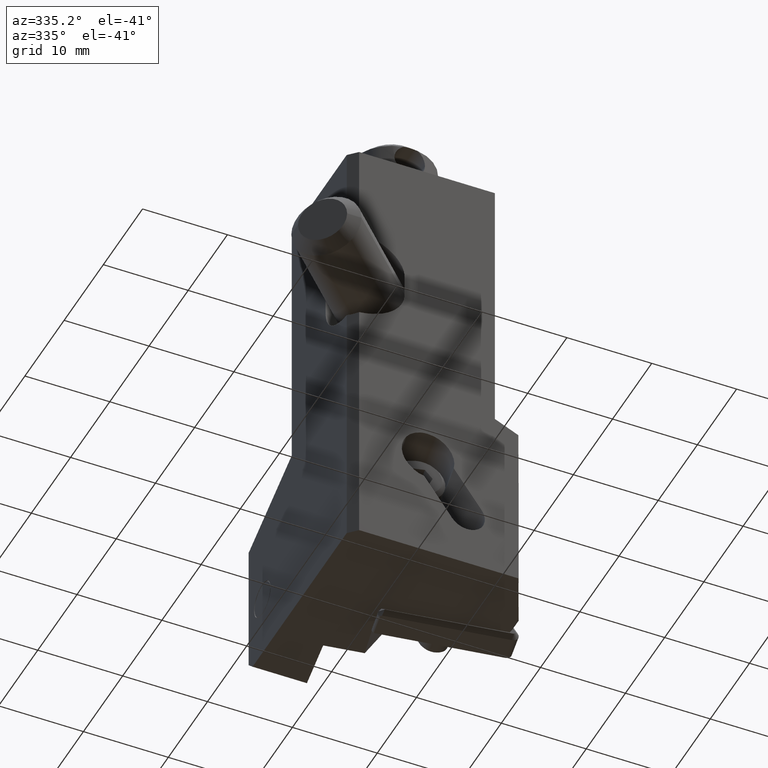
[diagram: clean part render]
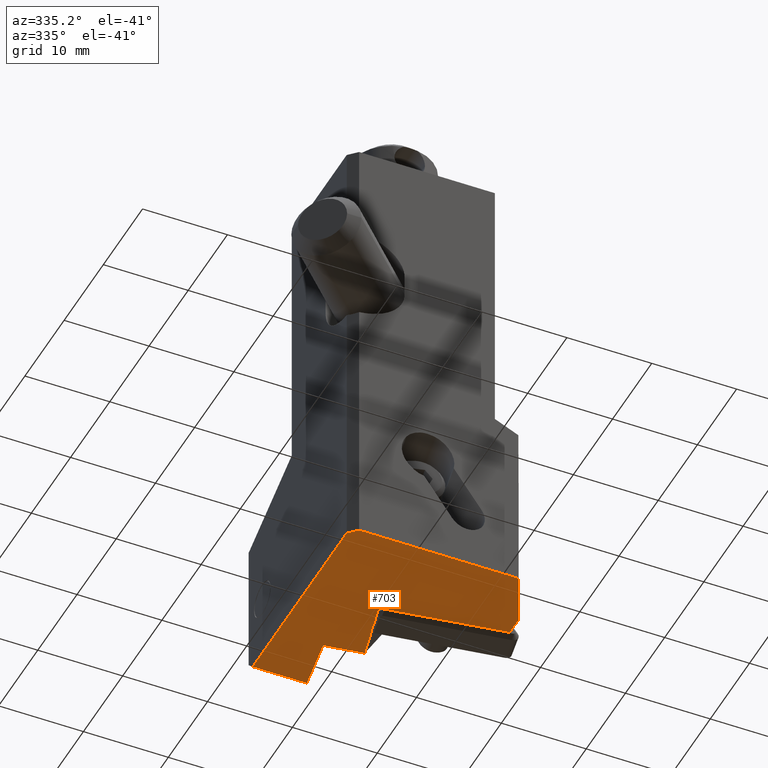
[diagram: same view with one face highlighted and labeled with its STEP entity id]
A machine part, auxiliary view. The second image highlights one B-rep face of the part: STEP entity #703.
In plain terms, the highlighted planar face has unit normal (0, 0, 1).
Its self-contained STEP definition (entity closure, byte-faithful):
#296=FACE_OUTER_BOUND('',#1083,.T.);
#703=ADVANCED_FACE('',(#296),#935,.F.);
#935=PLANE('',#4281);
#1083=EDGE_LOOP('',(#1398,#1399,#1400,#1401,#1402,#1403,#1404,#1405,#1406,
#1407,#1408));
#1333=ELLIPSE('',#4280,0.349148330194772,0.3000000005697);
#1398=ORIENTED_EDGE('',*,*,#2943,.F.);
#1399=ORIENTED_EDGE('',*,*,#2900,.F.);
#1400=ORIENTED_EDGE('',*,*,#2942,.F.);
#1401=ORIENTED_EDGE('',*,*,#2938,.T.);
#1402=ORIENTED_EDGE('',*,*,#2944,.T.);
#1403=ORIENTED_EDGE('',*,*,#2945,.T.);
#1404=ORIENTED_EDGE('',*,*,#2946,.F.);
#1405=ORIENTED_EDGE('',*,*,#2947,.F.);
#1406=ORIENTED_EDGE('',*,*,#2948,.T.);
#1407=ORIENTED_EDGE('',*,*,#2949,.F.);
#1408=ORIENTED_EDGE('',*,*,#2950,.T.);
#2527=VERTEX_POINT('',#5948);
#2528=VERTEX_POINT('',#5950);
#2560=VERTEX_POINT('',#6086);
#2561=VERTEX_POINT('',#6088);
#2564=VERTEX_POINT('',#6098);
#2565=VERTEX_POINT('',#6100);
#2566=VERTEX_POINT('',#6102);
#2567=VERTEX_POINT('',#6104);
#2568=VERTEX_POINT('',#6106);
#2569=VERTEX_POINT('',#6108);
#2570=VERTEX_POINT('',#6110);
#2900=EDGE_CURVE('',#2527,#2528,#3491,.T.);
#2938=EDGE_CURVE('',#2561,#2560,#3512,.T.);
#2942=EDGE_CURVE('',#2561,#2527,#3514,.T.);
#2943=EDGE_CURVE('',#2528,#2564,#3515,.T.);
#2944=EDGE_CURVE('',#2560,#2565,#3516,.T.);
#2945=EDGE_CURVE('',#2565,#2566,#3517,.T.);
#2946=EDGE_CURVE('',#2567,#2566,#3518,.T.);
#2947=EDGE_CURVE('',#2568,#2567,#3519,.T.);
#2948=EDGE_CURVE('',#2568,#2569,#1333,.T.);
#2949=EDGE_CURVE('',#2570,#2569,#3520,.T.);
#2950=EDGE_CURVE('',#2570,#2564,#3521,.T.);
#3491=LINE('',#5949,#3793);
#3512=LINE('',#6087,#3814);
#3514=LINE('',#6095,#3816);
#3515=LINE('',#6097,#3817);
#3516=LINE('',#6099,#3818);
#3517=LINE('',#6101,#3819);
#3518=LINE('',#6103,#3820);
#3519=LINE('',#6105,#3821);
#3520=LINE('',#6109,#3822);
#3521=LINE('',#6111,#3823);
#3793=VECTOR('',#4750,1.);
#3814=VECTOR('',#4805,1.);
#3816=VECTOR('',#4813,1.);
#3817=VECTOR('',#4816,1.);
#3818=VECTOR('',#4817,1.);
#3819=VECTOR('',#4818,1.);
#3820=VECTOR('',#4819,1.);
#3821=VECTOR('',#4820,1.);
#3822=VECTOR('',#4823,1.);
#3823=VECTOR('',#4824,1.);
#4280=AXIS2_PLACEMENT_3D('',#6107,#4821,#4822);
#4281=AXIS2_PLACEMENT_3D('',#6112,#4825,#4826);
#4750=DIRECTION('',(1.,0.,0.));
#4805=DIRECTION('',(0.,1.,0.));
#4813=DIRECTION('',(0.707106781186547,-0.707106781186547,0.));
#4816=DIRECTION('',(0.422618261740599,0.906307787036697,3.78024578662399E-14));
#4817=DIRECTION('',(1.,0.,0.));
#4818=DIRECTION('',(-0.156434465040597,-0.98768834059508,2.33375153093195E-14));
#4819=DIRECTION('',(-0.987688340595064,0.156434465040694,7.53274263999073E-14));
#4820=DIRECTION('',(0.22852003879801,0.973539209209242,6.8661472316833E-12));
#4821=DIRECTION('',(0.,0.,1.));
#4822=DIRECTION('',(-0.999834906017136,-0.0181703249752201,0.));
#4823=DIRECTION('',(-0.987688340595206,0.156434465039801,7.32033576978604E-13));
#4824=DIRECTION('',(1.088959902488E-13,-1.,-1.578202757229E-14));
#4825=DIRECTION('',(0.,0.,1.));
#4826=DIRECTION('',(-1.,0.,0.));
#5948=CARTESIAN_POINT('',(-16.,0.,-53.58234527097));
#5949=CARTESIAN_POINT('',(-16.,0.,-53.58234527097));
#5950=CARTESIAN_POINT('',(2.764161612452,-2.708944180085E-14,-53.58234527097));
#6086=CARTESIAN_POINT('',(-17.,25.,-53.58234527097));
#6087=CARTESIAN_POINT('',(-17.,1.,-53.58234527097));
#6088=CARTESIAN_POINT('',(-17.,1.,-53.58234527097));
#6095=CARTESIAN_POINT('',(-17.,1.,-53.58234527097));
#6097=CARTESIAN_POINT('',(2.764161612452,-2.708944180085E-14,-53.58234527097));
#6098=CARTESIAN_POINT('',(5.623864579362,6.132652803141,-53.58234527097));
#6099=CARTESIAN_POINT('',(-17.,25.,-53.58234527097));
#6100=CARTESIAN_POINT('',(-10.59979890877,25.,-53.58234527097));
#6101=CARTESIAN_POINT('',(-10.59979890877,25.,-53.58234527097));
#6102=CARTESIAN_POINT('',(-11.6,18.68497884528,-53.58234527097));
#6103=CARTESIAN_POINT('',(-7.034870717332,17.96193339883,-53.58234527097));
#6104=CARTESIAN_POINT('',(-7.034870717332,17.96193339883,-53.58234527097));
#6105=CARTESIAN_POINT('',(-8.678906040993,10.95802749488,-53.58234527102));
#6106=CARTESIAN_POINT('',(-8.67890604079668,10.9580274951327,-53.5823452709955));
#6107=CARTESIAN_POINT('',(-8.33668045290951,10.9002712941422,-53.58234527097));
#6108=CARTESIAN_POINT('',(-8.40180021200471,10.6052134639656,-53.58234527097));
#6109=CARTESIAN_POINT('',(5.623864579362,8.383766395819,-53.58234527097));
#6110=CARTESIAN_POINT('',(5.623864579362,8.383766395819,-53.58234527097));
#6111=CARTESIAN_POINT('',(5.623864579362,8.383766395819,-53.58234527097));
#6112=CARTESIAN_POINT('',(-5.688067710319,12.5,-53.58234527097));